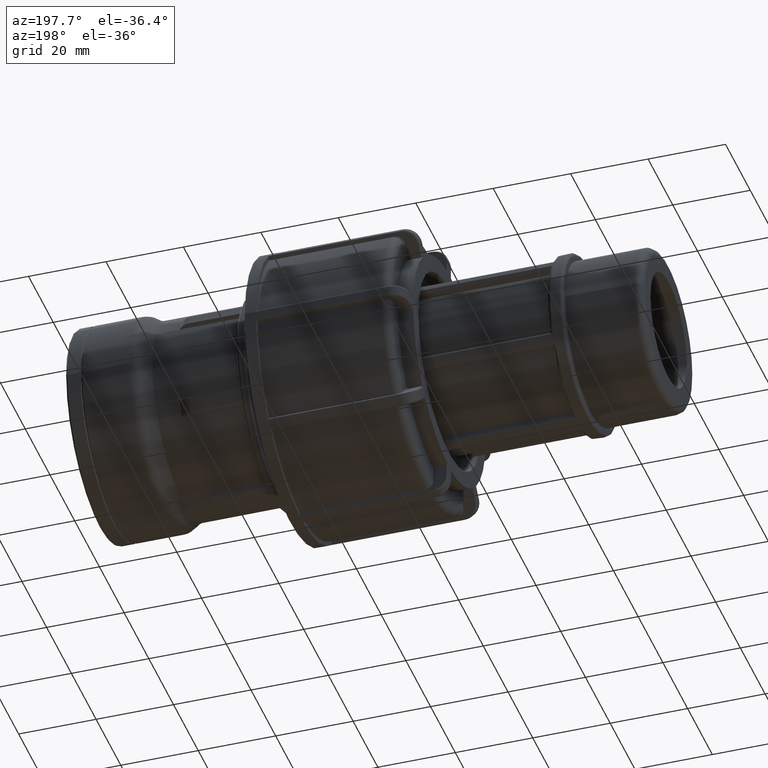
[diagram: clean part render]
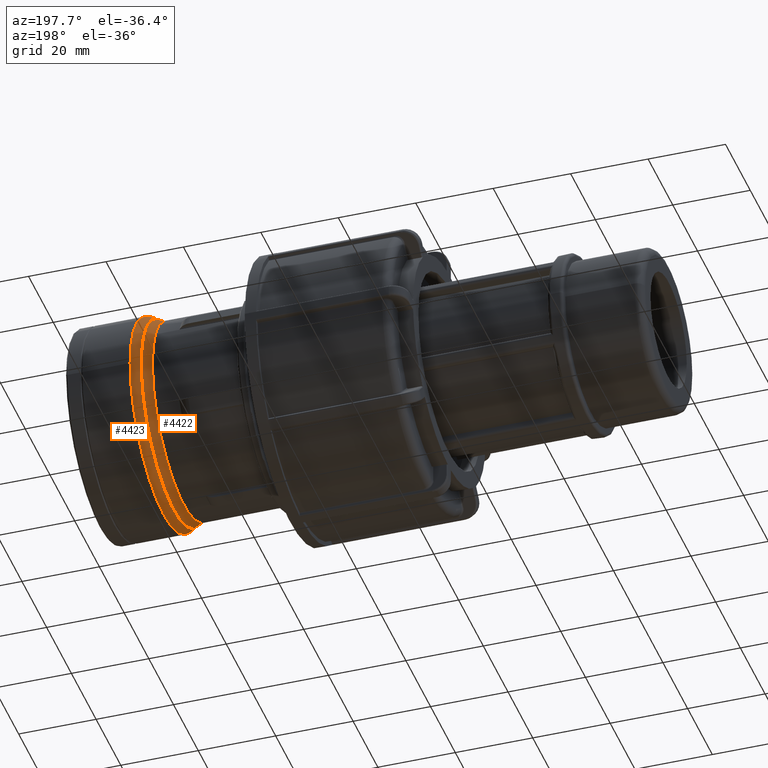
[diagram: same view with one multi-face feature highlighted, each face labeled with its STEP entity id]
A machine part, auxiliary view. The highlighted faces form ONE feature: a constant-radius fillet chain: 2 tangent blend faces with common blend radius 3.8952 mm. The faces share edges in the B-rep.
Their STEP definitions:
[1] entity #4422 (Torus):
#55=FACE_BOUND('',#1180,.T.);
#907=FACE_OUTER_BOUND('',#1179,.T.);
#1179=EDGE_LOOP('',(#3344));
#1180=EDGE_LOOP('',(#3345));
#1609=CIRCLE('',#4710,25.3188);
#1620=CIRCLE('',#4756,26.2926);
#1951=VERTEX_POINT('',#6984);
#1975=VERTEX_POINT('',#7252);
#2434=EDGE_CURVE('',#1951,#1951,#1609,.T.);
#2487=EDGE_CURVE('',#1975,#1975,#1620,.T.);
#3344=ORIENTED_EDGE('',*,*,#2434,.T.);
#3345=ORIENTED_EDGE('',*,*,#2487,.T.);
#4333=TOROIDAL_SURFACE('',#4755,29.214,3.8952);
#4422=ADVANCED_FACE('',(#907,#55),#4333,.F.);
#4710=AXIS2_PLACEMENT_3D('',#6985,#5365,#5366);
#4755=AXIS2_PLACEMENT_3D('',#7251,#5483,#5484);
#4756=AXIS2_PLACEMENT_3D('',#7253,#5485,#5486);
#5365=DIRECTION('center_axis',(1.,0.,0.));
#5366=DIRECTION('ref_axis',(0.,1.,-6.12323399573677E-17));
#5483=DIRECTION('center_axis',(1.,0.,0.));
#5484=DIRECTION('ref_axis',(0.,0.,-1.));
#5485=DIRECTION('center_axis',(-1.,0.,0.));
#5486=DIRECTION('ref_axis',(0.,1.,-6.12323399573677E-17));
#6984=CARTESIAN_POINT('',(-21.7795231006083,-25.3188,-1.5503293689126E-15));
#6985=CARTESIAN_POINT('Origin',(-21.7795231006083,0.,0.));
#7251=CARTESIAN_POINT('Origin',(-21.7795231006083,0.,0.));
#7252=CARTESIAN_POINT('',(-19.2030904738936,-26.2926,4.82987226468925E-15));
#7253=CARTESIAN_POINT('Origin',(-19.2030904738936,0.,0.));
[2] entity #4423 (Torus):
#56=FACE_BOUND('',#1182,.T.);
#908=FACE_OUTER_BOUND('',#1181,.T.);
#1181=EDGE_LOOP('',(#3346));
#1182=EDGE_LOOP('',(#3347));
#1620=CIRCLE('',#4756,26.2926);
#1621=CIRCLE('',#4758,27.2664);
#1975=VERTEX_POINT('',#7252);
#1976=VERTEX_POINT('',#7255);
#2487=EDGE_CURVE('',#1975,#1975,#1620,.T.);
#2488=EDGE_CURVE('',#1976,#1976,#1621,.T.);
#3346=ORIENTED_EDGE('',*,*,#2487,.F.);
#3347=ORIENTED_EDGE('',*,*,#2488,.T.);
#4334=TOROIDAL_SURFACE('',#4757,23.3712,3.8952);
#4423=ADVANCED_FACE('',(#908,#56),#4334,.T.);
#4756=AXIS2_PLACEMENT_3D('',#7253,#5485,#5486);
#4757=AXIS2_PLACEMENT_3D('',#7254,#5487,#5488);
#4758=AXIS2_PLACEMENT_3D('',#7256,#5489,#5490);
#5485=DIRECTION('center_axis',(-1.,0.,0.));
#5486=DIRECTION('ref_axis',(0.,1.,-6.12323399573677E-17));
#5487=DIRECTION('center_axis',(1.,0.,0.));
#5488=DIRECTION('ref_axis',(0.,1.,-1.85604082780806E-16));
#5489=DIRECTION('center_axis',(-1.,0.,0.));
#5490=DIRECTION('ref_axis',(0.,1.,-1.85604082780806E-16));
#7252=CARTESIAN_POINT('',(-19.2030904738936,-26.2926,4.82987226468925E-15));
#7253=CARTESIAN_POINT('Origin',(-19.2030904738936,0.,0.));
#7254=CARTESIAN_POINT('Origin',(-16.6266578471789,0.,0.));
#7255=CARTESIAN_POINT('',(-16.6266578471789,-27.2664,8.39992611116171E-15));
#7256=CARTESIAN_POINT('Origin',(-16.6266578471789,0.,0.));